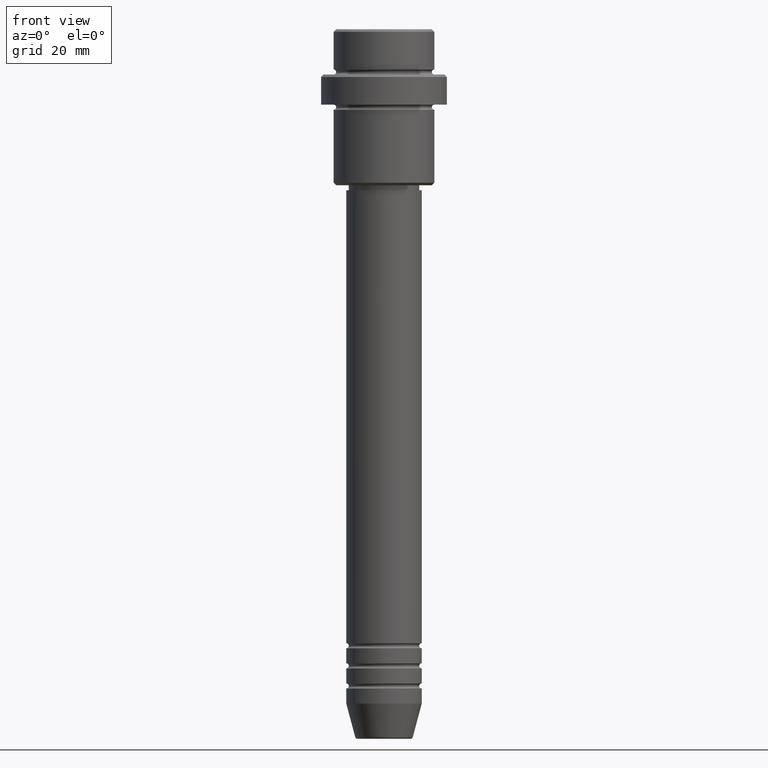
[diagram: clean part render]
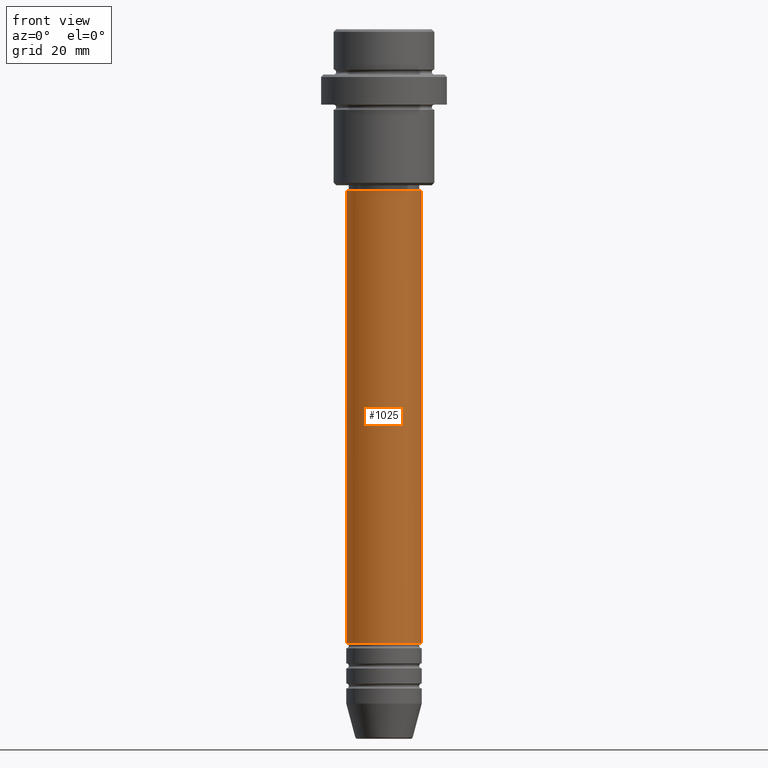
[diagram: same view with one face highlighted and labeled with its STEP entity id]
A machine part, front view. The second image highlights one B-rep face of the part: STEP entity #1025.
In plain terms, the highlighted cylindrical surface (partial cylindrical patch) has radius 7.5 mm, axis along (-0, -0, 1).
Its self-contained STEP definition (entity closure, byte-faithful):
#10 = EDGE_CURVE ( 'NONE', #835, #163, #854, .T. ) ;
#12 = CARTESIAN_POINT ( 'NONE',  ( -7.500000000000000000, 9.184850993605147944E-16, -121.9999999999999005 ) ) ;
#75 = DIRECTION ( 'NONE',  ( 1.000000000000000000, 0.000000000000000000, 0.000000000000000000 ) ) ;
#76 = ORIENTED_EDGE ( 'NONE', *, *, #1112, .F. ) ;
#91 = DIRECTION ( 'NONE',  ( -0.000000000000000000, -0.000000000000000000, 1.000000000000000000 ) ) ;
#113 = DIRECTION ( 'NONE',  ( 1.000000000000000000, 0.000000000000000000, 0.000000000000000000 ) ) ;
#163 = VERTEX_POINT ( 'NONE', #450 ) ;
#192 = AXIS2_PLACEMENT_3D ( 'NONE', #815, #91, #75 ) ;
#200 = ORIENTED_EDGE ( 'NONE', *, *, #322, .F. ) ;
#220 = CARTESIAN_POINT ( 'NONE',  ( 0.000000000000000000, 0.000000000000000000, -32.00000000000000000 ) ) ;
#245 = CARTESIAN_POINT ( 'NONE',  ( -7.500000000000000000, 9.184850993605147944E-16, 0.000000000000000000 ) ) ;
#322 = EDGE_CURVE ( 'NONE', #583, #424, #808, .T. ) ;
#338 = VECTOR ( 'NONE', #1239, 1000.000000000000000 ) ;
#424 = VERTEX_POINT ( 'NONE', #825 ) ;
#450 = CARTESIAN_POINT ( 'NONE',  ( 7.500000000000000000, 0.000000000000000000, -32.00000000000000000 ) ) ;
#502 = DIRECTION ( 'NONE',  ( -0.000000000000000000, -0.000000000000000000, 1.000000000000000000 ) ) ;
#538 = EDGE_LOOP ( 'NONE', ( #200, #747, #672, #76 ) ) ;
#583 = VERTEX_POINT ( 'NONE', #12 ) ;
#602 = CARTESIAN_POINT ( 'NONE',  ( 0.000000000000000000, 0.000000000000000000, 0.000000000000000000 ) ) ;
#672 = ORIENTED_EDGE ( 'NONE', *, *, #10, .T. ) ;
#727 = CIRCLE ( 'NONE', #1371, 7.500000000000000000 ) ;
#742 = CYLINDRICAL_SURFACE ( 'NONE', #1368, 7.500000000000000000 ) ;
#747 = ORIENTED_EDGE ( 'NONE', *, *, #1402, .T. ) ;
#808 = LINE ( 'NONE', #245, #338 ) ;
#810 = CARTESIAN_POINT ( 'NONE',  ( 7.500000000000000000, 0.000000000000000000, -121.9999999999999005 ) ) ;
#815 = CARTESIAN_POINT ( 'NONE',  ( 0.000000000000000000, 0.000000000000000000, -121.9999999999999005 ) ) ;
#820 = CIRCLE ( 'NONE', #192, 7.500000000000000000 ) ;
#825 = CARTESIAN_POINT ( 'NONE',  ( -7.500000000000000000, 9.184850993605147944E-16, -32.00000000000000000 ) ) ;
#835 = VERTEX_POINT ( 'NONE', #810 ) ;
#854 = LINE ( 'NONE', #1389, #1322 ) ;
#932 = DIRECTION ( 'NONE',  ( 1.000000000000000000, 0.000000000000000000, 0.000000000000000000 ) ) ;
#1025 = ADVANCED_FACE ( 'NONE', ( #1289 ), #742, .T. ) ;
#1112 = EDGE_CURVE ( 'NONE', #424, #163, #727, .T. ) ;
#1239 = DIRECTION ( 'NONE',  ( -0.000000000000000000, -0.000000000000000000, 1.000000000000000000 ) ) ;
#1277 = DIRECTION ( 'NONE',  ( -0.000000000000000000, -0.000000000000000000, 1.000000000000000000 ) ) ;
#1289 = FACE_OUTER_BOUND ( 'NONE', #538, .T. ) ;
#1304 = DIRECTION ( 'NONE',  ( -0.000000000000000000, -0.000000000000000000, 1.000000000000000000 ) ) ;
#1322 = VECTOR ( 'NONE', #1277, 1000.000000000000000 ) ;
#1368 = AXIS2_PLACEMENT_3D ( 'NONE', #602, #502, #932 ) ;
#1371 = AXIS2_PLACEMENT_3D ( 'NONE', #220, #1304, #113 ) ;
#1389 = CARTESIAN_POINT ( 'NONE',  ( 7.500000000000000000, 0.000000000000000000, 0.000000000000000000 ) ) ;
#1402 = EDGE_CURVE ( 'NONE', #583, #835, #820, .T. ) ;